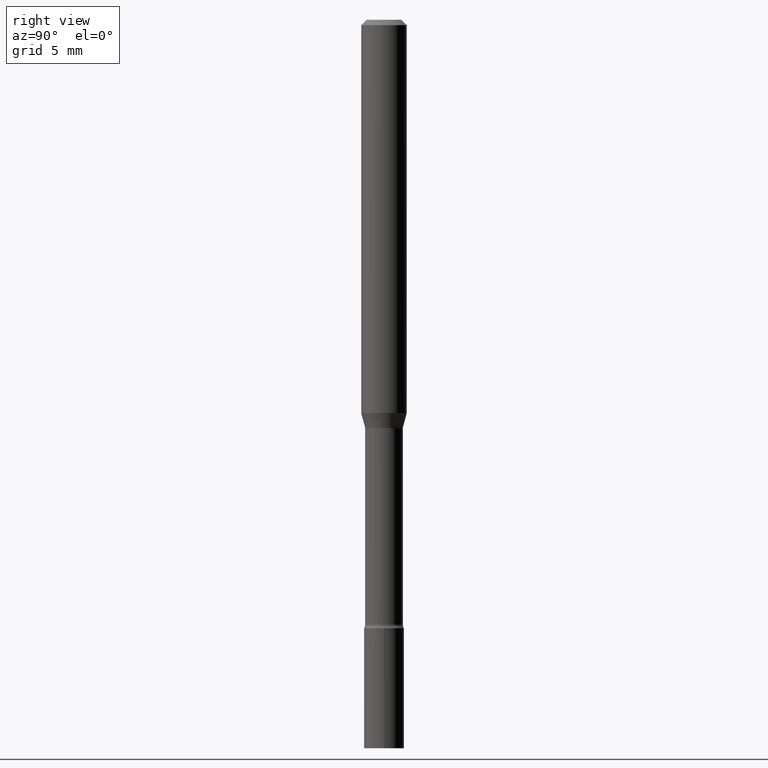
[diagram: clean part render]
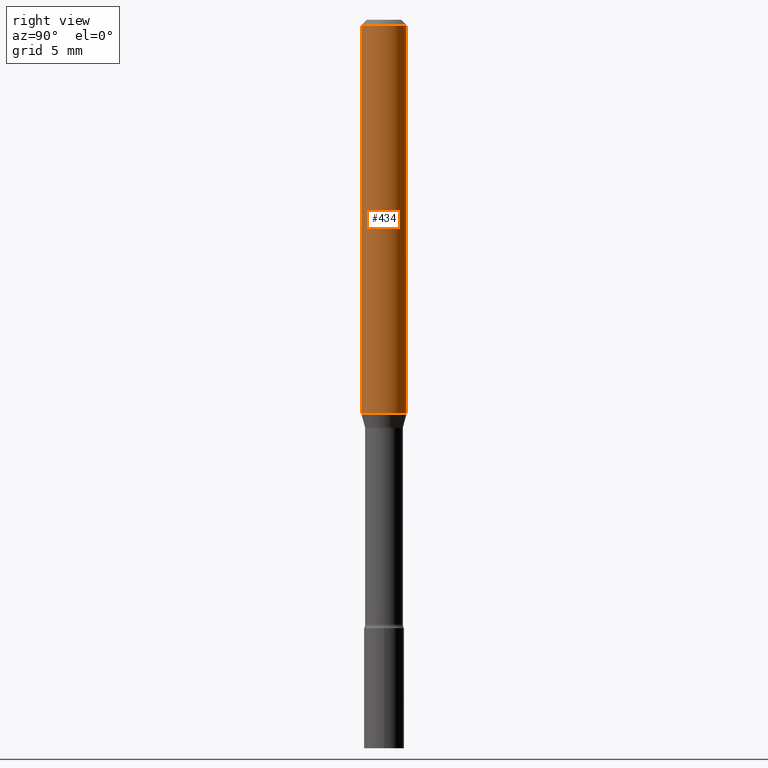
[diagram: same view with one face highlighted and labeled with its STEP entity id]
A machine part, right view. The second image highlights one B-rep face of the part: STEP entity #434.
In plain terms, the highlighted cylindrical surface (edge-blend (fillet) strip) has radius 1.5875 mm, axis along (-0, 0, 1).
Its self-contained STEP definition (entity closure, byte-faithful):
#12 = CARTESIAN_POINT ( 'NONE',  ( -4.364351673553912750E-16, -0.06250000000000005551, -0.01499999999999981209 ) ) ;
#68 = DIRECTION ( 'NONE',  ( -2.445425162328998423E-29, 3.491543839329189399E-15, 1.000000000000000000 ) ) ;
#78 = CIRCLE ( 'NONE', #307, 0.06250000000000000000 ) ;
#87 = DIRECTION ( 'NONE',  ( -2.445425162328998423E-29, 3.491543839329189399E-15, 1.000000000000000000 ) ) ;
#100 = CARTESIAN_POINT ( 'NONE',  ( 3.668137743493505096E-31, -5.237315758993794502E-17, -0.01500000000000003067 ) ) ;
#116 = VERTEX_POINT ( 'NONE', #480 ) ;
#130 = VECTOR ( 'NONE', #378, 39.37007874015748143 ) ;
#136 = CIRCLE ( 'NONE', #500, 0.06250000000000000000 ) ;
#139 = CARTESIAN_POINT ( 'NONE',  ( -4.364351673553652919E-16, -0.06250000000000377476, -1.079693851278255901 ) ) ;
#146 = EDGE_CURVE ( 'NONE', #380, #116, #78, .T. ) ;
#169 = CARTESIAN_POINT ( 'NONE',  ( 4.440892098500625669E-16, 0.06250000000000000000, -2.182214899580743374E-16 ) ) ;
#181 = CARTESIAN_POINT ( 'NONE',  ( -4.364351673553916201E-16, -0.06250000000000000000, 2.182214899580743374E-16 ) ) ;
#185 = LINE ( 'NONE', #181, #130 ) ;
#234 = EDGE_CURVE ( 'NONE', #401, #363, #136, .T. ) ;
#242 = CARTESIAN_POINT ( 'NONE',  ( 0.000000000000000000, 0.000000000000000000, 0.000000000000000000 ) ) ;
#249 = EDGE_CURVE ( 'NONE', #401, #380, #185, .T. ) ;
#257 = FACE_OUTER_BOUND ( 'NONE', #375, .T. ) ;
#258 = EDGE_CURVE ( 'NONE', #363, #116, #381, .T. ) ;
#263 = CYLINDRICAL_SURFACE ( 'NONE', #356, 0.06250000000000000000 ) ;
#264 = DIRECTION ( 'NONE',  ( -6.982962677686265922E-15, -1.000000000000000000, 4.370956789862821150E-15 ) ) ;
#270 = DIRECTION ( 'NONE',  ( -6.982962677686265922E-15, -1.000000000000000000, 3.483106191921935554E-15 ) ) ;
#281 = ORIENTED_EDGE ( 'NONE', *, *, #234, .T. ) ;
#302 = CARTESIAN_POINT ( 'NONE',  ( 4.440892098500888458E-16, 0.06249999999999621830, -1.079693851278256345 ) ) ;
#307 = AXIS2_PLACEMENT_3D ( 'NONE', #100, #87, #270 ) ;
#313 = VECTOR ( 'NONE', #331, 39.37007874015748143 ) ;
#331 = DIRECTION ( 'NONE',  ( -2.445425162328998703E-29, 3.491543839329189794E-15, 1.000000000000000000 ) ) ;
#356 = AXIS2_PLACEMENT_3D ( 'NONE', #242, #68, #504 ) ;
#358 = ORIENTED_EDGE ( 'NONE', *, *, #146, .F. ) ;
#363 = VERTEX_POINT ( 'NONE', #302 ) ;
#364 = ORIENTED_EDGE ( 'NONE', *, *, #249, .F. ) ;
#375 = EDGE_LOOP ( 'NONE', ( #281, #477, #358, #364 ) ) ;
#378 = DIRECTION ( 'NONE',  ( -2.445425162328998703E-29, 3.491543839329189794E-15, 1.000000000000000000 ) ) ;
#380 = VERTEX_POINT ( 'NONE', #12 ) ;
#381 = LINE ( 'NONE', #169, #313 ) ;
#401 = VERTEX_POINT ( 'NONE', #139 ) ;
#419 = CARTESIAN_POINT ( 'NONE',  ( 2.640310511527751488E-29, -3.769798414792201545E-15, -1.079693851278256123 ) ) ;
#434 = ADVANCED_FACE ( 'NONE', ( #257 ), #263, .T. ) ;
#477 = ORIENTED_EDGE ( 'NONE', *, *, #258, .T. ) ;
#479 = DIRECTION ( 'NONE',  ( -2.445425162328998423E-29, 3.491543839329189399E-15, 1.000000000000000000 ) ) ;
#480 = CARTESIAN_POINT ( 'NONE',  ( 4.440892098500891416E-16, 0.06249999999999995143, -0.01500000000000024751 ) ) ;
#500 = AXIS2_PLACEMENT_3D ( 'NONE', #419, #479, #264 ) ;
#504 = DIRECTION ( 'NONE',  ( -6.982962677686265922E-15, -1.000000000000000000, 3.491543839329189399E-15 ) ) ;